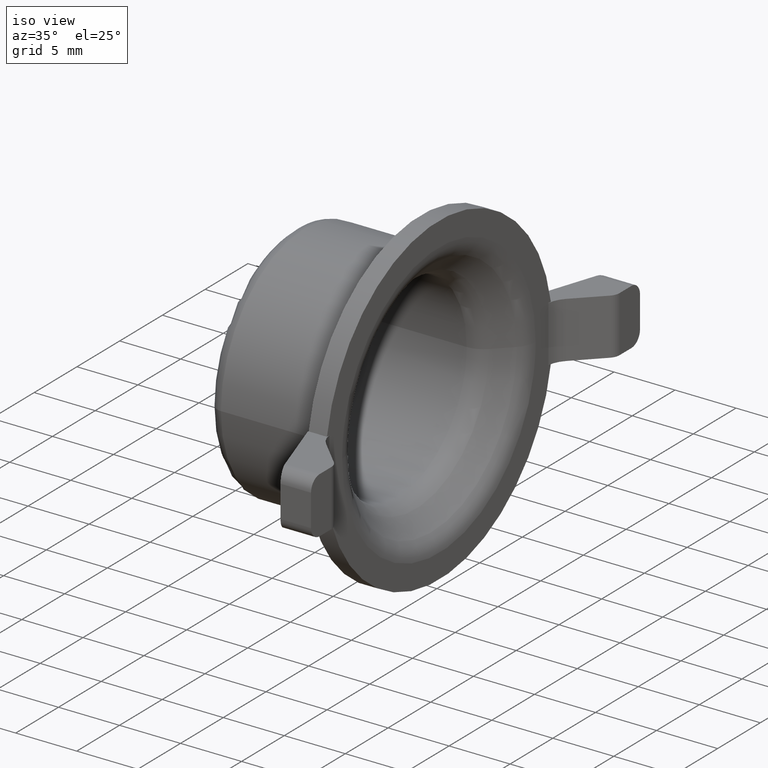
[diagram: clean part render]
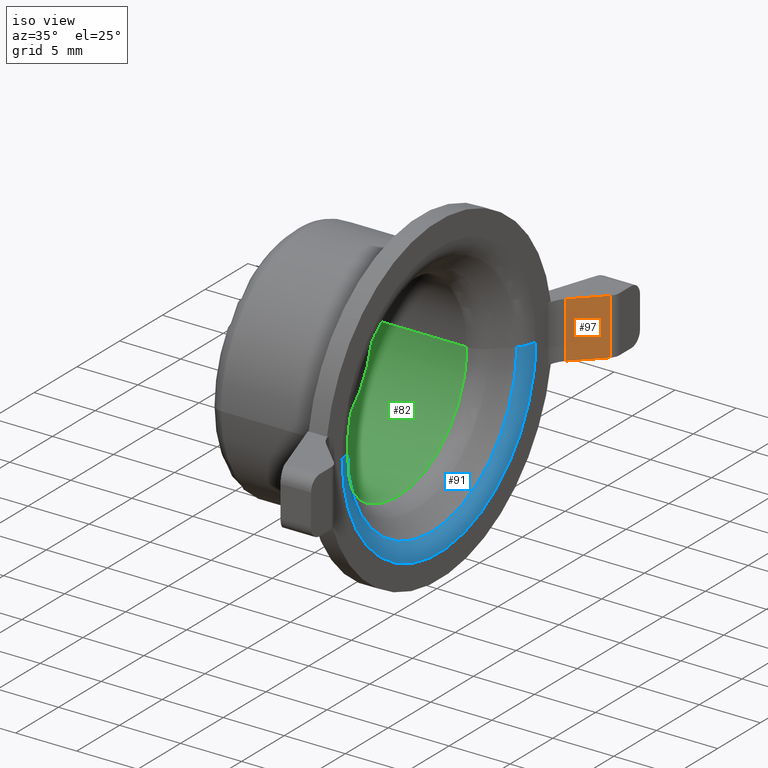
[diagram: same view with three faces highlighted in distinct colors, each labeled with its STEP entity id]
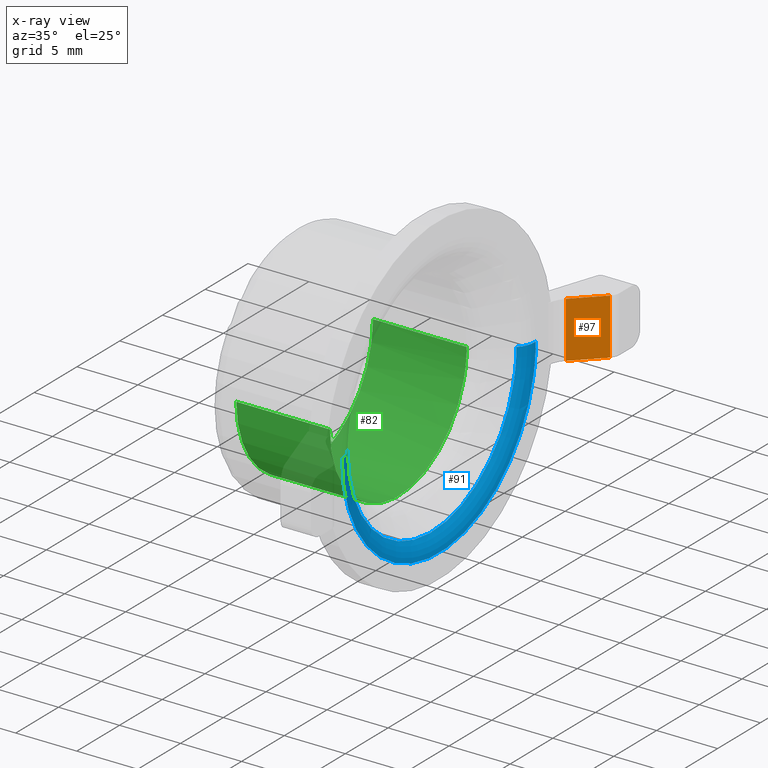
[diagram: x-ray of the same camera — body ghosted, the three highlighted faces saturated]
A machine part, iso view with three faces highlighted in distinct colors.
The next image is the same camera in x-ray (body ghosted, the three faces saturated) — at least one of them is partly hidden behind the body in this view.
Their STEP definitions:

[orange] entity #97 — the highlighted planar face has unit normal (0.7071, -0.7071, 0).
#52=PLANE('',#1144);
#97=ADVANCED_FACE('',(#152),#52,.T.);
#152=FACE_OUTER_BOUND('',#208,.F.);
#208=EDGE_LOOP('',(#423,#424,#425,#426));
#423=ORIENTED_EDGE('',*,*,#842,.T.);
#424=ORIENTED_EDGE('',*,*,#840,.T.);
#425=ORIENTED_EDGE('',*,*,#844,.T.);
#426=ORIENTED_EDGE('',*,*,#839,.F.);
#615=LINE('',#1749,#695);
#616=LINE('',#1750,#696);
#618=LINE('',#1752,#698);
#620=LINE('',#1754,#700);
#695=VECTOR('',#1351,4.60000000000001);
#696=VECTOR('',#1352,4.60000000000008);
#698=VECTOR('',#1354,3.01414213562369);
#700=VECTOR('',#1356,3.01414213562367);
#839=EDGE_CURVE('',#1008,#1005,#615,.T.);
#840=EDGE_CURVE('',#924,#923,#616,.T.);
#842=EDGE_CURVE('',#1008,#924,#618,.T.);
#844=EDGE_CURVE('',#923,#1005,#620,.T.);
#923=VERTEX_POINT('',#1495);
#924=VERTEX_POINT('',#1496);
#1005=VERTEX_POINT('',#1577);
#1008=VERTEX_POINT('',#1580);
#1144=AXIS2_PLACEMENT_3D('',#1803,#1449,#1450);
#1351=DIRECTION('',(0.,0.,1.));
#1352=DIRECTION('',(0.,0.,1.));
#1354=DIRECTION('',(-0.707106781186551,-0.707106781186544,0.));
#1356=DIRECTION('',(0.70710678118655,0.707106781186545,0.));
#1449=DIRECTION('',(0.707106781186544,-0.707106781186551,0.));
#1450=DIRECTION('',(0.,0.,1.));
#1495=CARTESIAN_POINT('',(90.7407861523231,-35.974209989566,130.800000055078));
#1496=CARTESIAN_POINT('',(90.7407861523231,-35.974209989566,126.200000055078));
#1577=CARTESIAN_POINT('',(92.8721064958827,-33.8428896460064,130.800000055078));
#1580=CARTESIAN_POINT('',(92.8721064958827,-33.8428896460064,126.200000055078));
#1749=CARTESIAN_POINT('',(92.8721064958827,-33.8428896460064,126.200000055078));
#1750=CARTESIAN_POINT('',(90.7407861523231,-35.974209989566,126.200000055078));
#1752=CARTESIAN_POINT('',(92.8721064958827,-33.8428896460064,126.200000055078));
#1754=CARTESIAN_POINT('',(90.7407861523231,-35.974209989566,130.800000055078));
#1803=CARTESIAN_POINT('',(93.1649997146962,-33.549996427193,109.425000055078));

[blue] entity #91 — the highlighted toroidal blend (fillet) surface has major radius 11.3284 mm and minor (blend) radius 2 mm.
#32=TOROIDAL_SURFACE('',#1138,11.3284271247462,2.);
#91=ADVANCED_FACE('',(#146),#32,.T.);
#146=FACE_OUTER_BOUND('',#202,.F.);
#202=EDGE_LOOP('',(#393,#394,#395,#396,#397,#398));
#393=ORIENTED_EDGE('',*,*,#831,.F.);
#394=ORIENTED_EDGE('',*,*,#753,.F.);
#395=ORIENTED_EDGE('',*,*,#754,.F.);
#396=ORIENTED_EDGE('',*,*,#832,.T.);
#397=ORIENTED_EDGE('',*,*,#818,.T.);
#398=ORIENTED_EDGE('',*,*,#817,.T.);
#753=EDGE_CURVE('',#960,#959,#877,.T.);
#754=EDGE_CURVE('',#958,#960,#878,.T.);
#817=EDGE_CURVE('',#934,#933,#899,.T.);
#818=EDGE_CURVE('',#932,#934,#900,.T.);
#831=EDGE_CURVE('',#959,#933,#911,.T.);
#832=EDGE_CURVE('',#958,#932,#912,.T.);
#877=CIRCLE('',#1064,11.3284271247462);
#878=CIRCLE('',#1065,11.3284271247462);
#899=CIRCLE('',#1086,9.91421356237309);
#900=CIRCLE('',#1087,9.91421356237309);
#911=CIRCLE('',#1098,2.);
#912=CIRCLE('',#1099,2.);
#932=VERTEX_POINT('',#1504);
#933=VERTEX_POINT('',#1505);
#934=VERTEX_POINT('',#1506);
#958=VERTEX_POINT('',#1530);
#959=VERTEX_POINT('',#1531);
#960=VERTEX_POINT('',#1532);
#1064=AXIS2_PLACEMENT_3D('',#1663,#1229,#1230);
#1065=AXIS2_PLACEMENT_3D('',#1664,#1231,#1232);
#1086=AXIS2_PLACEMENT_3D('',#1727,#1315,#1316);
#1087=AXIS2_PLACEMENT_3D('',#1728,#1317,#1318);
#1098=AXIS2_PLACEMENT_3D('',#1741,#1341,#1342);
#1099=AXIS2_PLACEMENT_3D('',#1742,#1343,#1344);
#1138=AXIS2_PLACEMENT_3D('',#1797,#1437,#1438);
#1229=DIRECTION('',(1.,0.,0.));
#1230=DIRECTION('',(0.,0.979172711112534,-0.203029066422841));
#1231=DIRECTION('',(1.,0.,0.));
#1232=DIRECTION('',(0.,-1.,0.));
#1315=DIRECTION('',(1.,0.,0.));
#1316=DIRECTION('',(0.,0.97271812829714,-0.231990178417337));
#1317=DIRECTION('',(1.,0.,0.));
#1318=DIRECTION('',(0.,-1.,0.));
#1341=DIRECTION('',(0.,0.,-1.));
#1342=DIRECTION('',(1.,0.,0.));
#1343=DIRECTION('',(0.,0.,1.));
#1344=DIRECTION('',(1.,0.,0.));
#1437=DIRECTION('',(1.,0.,0.));
#1438=DIRECTION('',(0.,-1.,0.));
#1504=CARTESIAN_POINT('',(89.5792132770692,-59.9142099895661,128.500000055078));
#1505=CARTESIAN_POINT('',(89.5792132770692,-40.0857828648199,128.500000055078));
#1506=CARTESIAN_POINT('',(89.5792132770692,-40.3562611672633,126.199999881875));
#1530=CARTESIAN_POINT('',(90.1649997146961,-61.3284235519392,128.500000055078));
#1531=CARTESIAN_POINT('',(90.1649997146961,-38.6715693024468,128.500000055078));
#1532=CARTESIAN_POINT('',(90.1649997146961,-38.9075097268145,126.200000071901));
#1663=CARTESIAN_POINT('',(90.1649997146962,-49.999996427193,128.500000055078));
#1664=CARTESIAN_POINT('',(90.1649997146962,-49.999996427193,128.500000055078));
#1727=CARTESIAN_POINT('',(89.5792132770692,-49.999996427193,128.500000055078));
#1728=CARTESIAN_POINT('',(89.5792132770692,-49.999996427193,128.500000055078));
#1741=CARTESIAN_POINT('',(88.1649997146962,-38.6715693024468,128.500000055078));
#1742=CARTESIAN_POINT('',(88.1649997146962,-61.3284235519392,128.500000055078));
#1797=CARTESIAN_POINT('',(88.1649997146962,-49.999996427193,128.500000055078));

[green] entity #82 — the highlighted cylindrical surface (partial cylindrical patch) has radius 8 mm, axis along (-1, 0, 0).
#82=ADVANCED_FACE('',(#137),#527,.F.);
#137=FACE_OUTER_BOUND('',#193,.F.);
#193=EDGE_LOOP('',(#345,#346,#347,#348,#349));
#345=ORIENTED_EDGE('',*,*,#816,.F.);
#346=ORIENTED_EDGE('',*,*,#813,.F.);
#347=ORIENTED_EDGE('',*,*,#815,.T.);
#348=ORIENTED_EDGE('',*,*,#809,.F.);
#349=ORIENTED_EDGE('',*,*,#810,.F.);
#527=CYLINDRICAL_SURFACE('',#1129,8.);
#605=LINE('',#1725,#685);
#606=LINE('',#1726,#686);
#685=VECTOR('',#1313,7.67157287525382);
#686=VECTOR('',#1314,7.67157287525382);
#809=EDGE_CURVE('',#940,#939,#893,.T.);
#810=EDGE_CURVE('',#938,#940,#894,.T.);
#813=EDGE_CURVE('',#936,#935,#897,.T.);
#815=EDGE_CURVE('',#936,#939,#605,.T.);
#816=EDGE_CURVE('',#935,#938,#606,.T.);
#893=CIRCLE('',#1080,8.);
#894=CIRCLE('',#1081,8.);
#897=CIRCLE('',#1084,8.);
#935=VERTEX_POINT('',#1507);
#936=VERTEX_POINT('',#1508);
#938=VERTEX_POINT('',#1510);
#939=VERTEX_POINT('',#1511);
#940=VERTEX_POINT('',#1512);
#1080=AXIS2_PLACEMENT_3D('',#1719,#1301,#1302);
#1081=AXIS2_PLACEMENT_3D('',#1720,#1303,#1304);
#1084=AXIS2_PLACEMENT_3D('',#1723,#1309,#1310);
#1129=AXIS2_PLACEMENT_3D('',#1788,#1419,#1420);
#1301=DIRECTION('',(1.,0.,0.));
#1302=DIRECTION('',(0.,0.957780637724526,-0.287500000000002));
#1303=DIRECTION('',(1.,0.,0.));
#1304=DIRECTION('',(0.,-1.,0.));
#1309=DIRECTION('',(-1.,0.,0.));
#1310=DIRECTION('',(0.,1.,0.));
#1313=DIRECTION('',(1.,0.,0.));
#1314=DIRECTION('',(1.,0.,0.));
#1419=DIRECTION('',(-1.,0.,0.));
#1420=DIRECTION('',(0.,1.,0.));
#1507=CARTESIAN_POINT('',(79.1649997146962,-57.999996427193,128.500000055078));
#1508=CARTESIAN_POINT('',(79.1649997146962,-41.999996427193,128.500000055078));
#1510=CARTESIAN_POINT('',(86.83657258995,-57.999996427193,128.500000055078));
#1511=CARTESIAN_POINT('',(86.83657258995,-41.999996427193,128.500000055078));
#1512=CARTESIAN_POINT('',(86.83657258995,-42.3377513253968,126.200000055078));
#1719=CARTESIAN_POINT('',(86.83657258995,-49.999996427193,128.500000055078));
#1720=CARTESIAN_POINT('',(86.83657258995,-49.999996427193,128.500000055078));
#1723=CARTESIAN_POINT('',(79.1649997146961,-49.999996427193,128.500000055078));
#1725=CARTESIAN_POINT('',(79.1649997146962,-41.999996427193,128.500000055078));
#1726=CARTESIAN_POINT('',(79.1649997146962,-57.999996427193,128.500000055078));
#1788=CARTESIAN_POINT('',(78.1649997146962,-49.999996427193,128.500000055078));